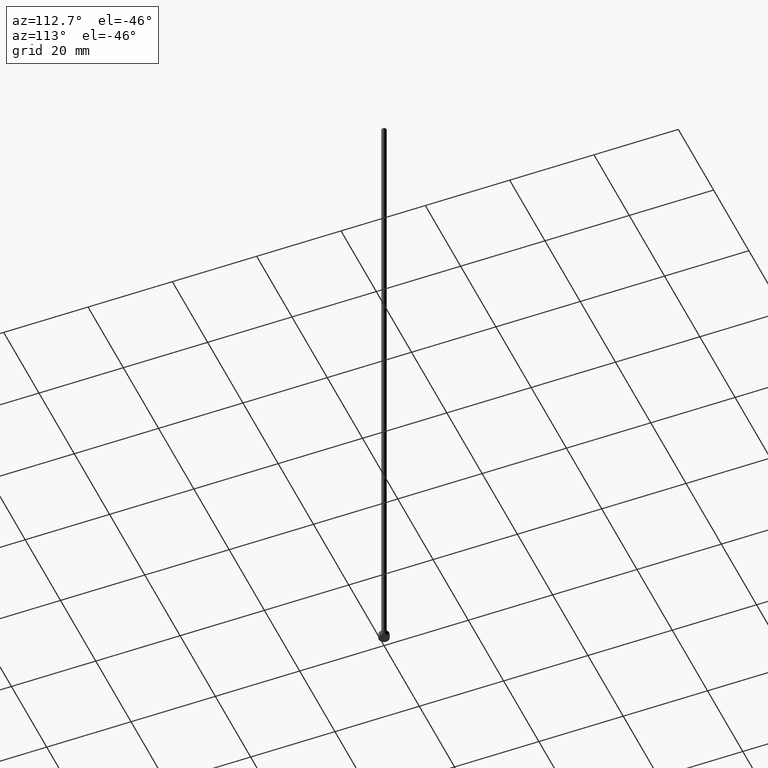
[diagram: clean part render]
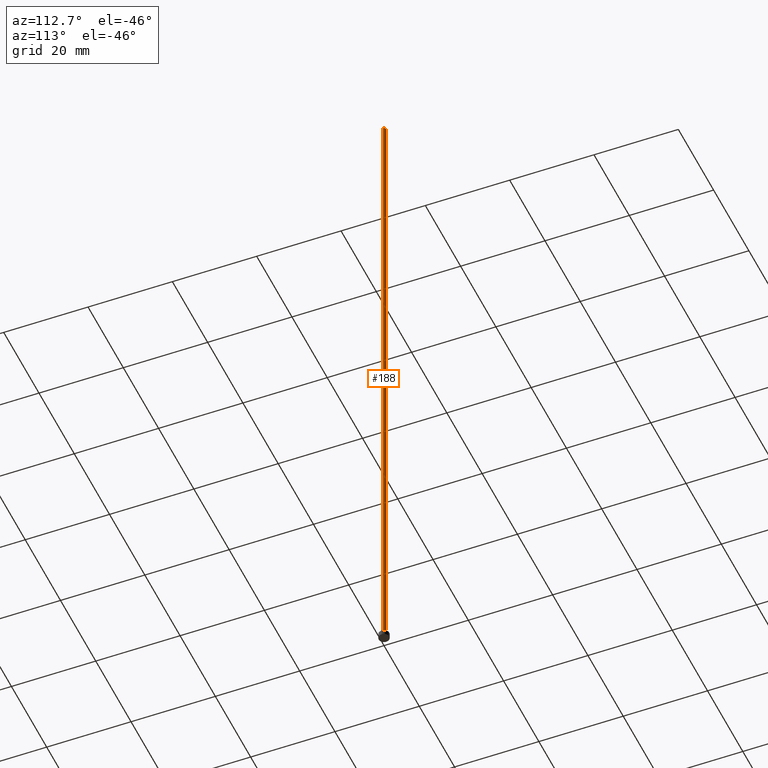
[diagram: same view with one face highlighted and labeled with its STEP entity id]
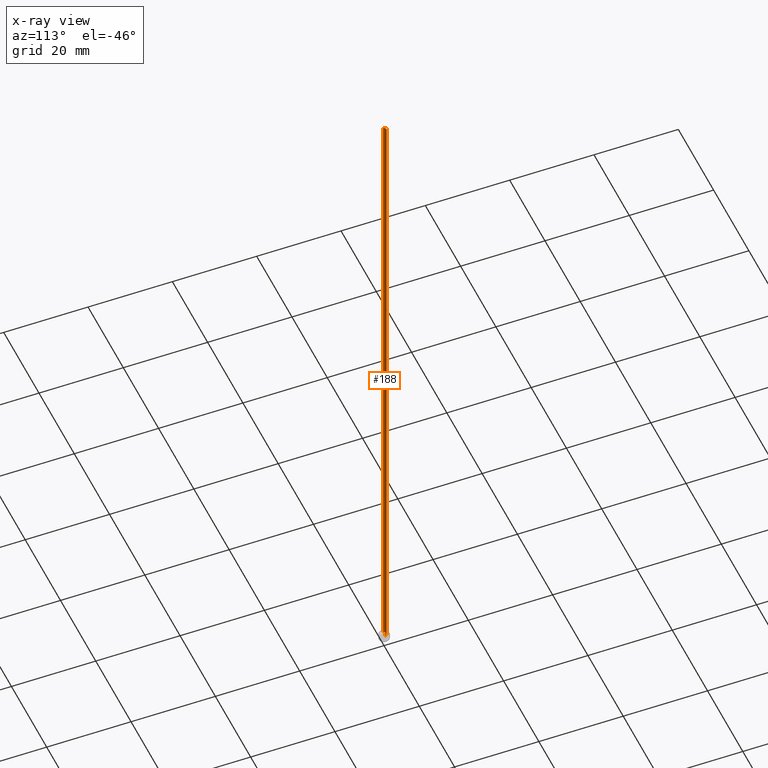
[diagram: x-ray of the same camera — body ghosted, the highlighted face saturated]
A machine part, auxiliary view. The second image highlights one B-rep face of the part: STEP entity #188.
The next image is the same camera in x-ray: the body ghosted, the highlighted face saturated — about 0% of this face is hidden behind the body in this view.
In plain terms, the highlighted cylindrical surface (edge-blend (fillet) strip) has radius 0.6 mm, axis along (-0, -0, -1).
Its self-contained STEP definition (entity closure, byte-faithful):
#4 = VECTOR ( 'NONE', #180, 1000.000000000000000 ) ;
#6 = DIRECTION ( 'NONE',  ( -0.000000000000000000, -0.000000000000000000, -1.000000000000000000 ) ) ;
#19 = DIRECTION ( 'NONE',  ( -0.000000000000000000, -0.000000000000000000, -1.000000000000000000 ) ) ;
#27 = ORIENTED_EDGE ( 'NONE', *, *, #128, .T. ) ;
#32 = CARTESIAN_POINT ( 'NONE',  ( 0.5999999999999999778, 7.347880794884117764E-17, 160.0000000000000284 ) ) ;
#34 = LINE ( 'NONE', #32, #141 ) ;
#41 = FACE_OUTER_BOUND ( 'NONE', #236, .T. ) ;
#42 = EDGE_CURVE ( 'NONE', #196, #43, #34, .T. ) ;
#43 = VERTEX_POINT ( 'NONE', #53 ) ;
#53 = CARTESIAN_POINT ( 'NONE',  ( 0.5999999999999999778, 7.347880794884117764E-17, 1.199999999999999956 ) ) ;
#73 = CARTESIAN_POINT ( 'NONE',  ( 0.000000000000000000, 0.000000000000000000, 1.199999999999999956 ) ) ;
#76 = EDGE_CURVE ( 'NONE', #149, #81, #181, .T. ) ;
#81 = VERTEX_POINT ( 'NONE', #242 ) ;
#93 = DIRECTION ( 'NONE',  ( 1.000000000000000000, 0.000000000000000000, 0.000000000000000000 ) ) ;
#98 = ORIENTED_EDGE ( 'NONE', *, *, #182, .F. ) ;
#112 = DIRECTION ( 'NONE',  ( -1.000000000000000000, 0.000000000000000000, 0.000000000000000000 ) ) ;
#123 = DIRECTION ( 'NONE',  ( 1.000000000000000000, 0.000000000000000000, 0.000000000000000000 ) ) ;
#128 = EDGE_CURVE ( 'NONE', #43, #81, #144, .T. ) ;
#139 = CARTESIAN_POINT ( 'NONE',  ( -0.5999999999999999778, 0.000000000000000000, 160.0000000000000284 ) ) ;
#141 = VECTOR ( 'NONE', #6, 1000.000000000000000 ) ;
#144 = CIRCLE ( 'NONE', #243, 0.5999999999999999778 ) ;
#145 = DIRECTION ( 'NONE',  ( 0.000000000000000000, 0.000000000000000000, 1.000000000000000000 ) ) ;
#149 = VERTEX_POINT ( 'NONE', #219 ) ;
#152 = ORIENTED_EDGE ( 'NONE', *, *, #76, .F. ) ;
#177 = AXIS2_PLACEMENT_3D ( 'NONE', #231, #19, #112 ) ;
#180 = DIRECTION ( 'NONE',  ( -0.000000000000000000, -0.000000000000000000, -1.000000000000000000 ) ) ;
#181 = LINE ( 'NONE', #139, #4 ) ;
#182 = EDGE_CURVE ( 'NONE', #196, #149, #239, .T. ) ;
#184 = AXIS2_PLACEMENT_3D ( 'NONE', #251, #145, #93 ) ;
#188 = ADVANCED_FACE ( 'NONE', ( #41 ), #190, .T. ) ;
#190 = CYLINDRICAL_SURFACE ( 'NONE', #177, 0.5999999999999999778 ) ;
#196 = VERTEX_POINT ( 'NONE', #252 ) ;
#203 = DIRECTION ( 'NONE',  ( 0.000000000000000000, 0.000000000000000000, 1.000000000000000000 ) ) ;
#219 = CARTESIAN_POINT ( 'NONE',  ( -0.5999999999999999778, 0.000000000000000000, 160.0000000000000284 ) ) ;
#231 = CARTESIAN_POINT ( 'NONE',  ( 0.000000000000000000, 0.000000000000000000, 160.0000000000000284 ) ) ;
#235 = ORIENTED_EDGE ( 'NONE', *, *, #42, .T. ) ;
#236 = EDGE_LOOP ( 'NONE', ( #98, #235, #27, #152 ) ) ;
#239 = CIRCLE ( 'NONE', #184, 0.5999999999999999778 ) ;
#242 = CARTESIAN_POINT ( 'NONE',  ( -0.5999999999999999778, 0.000000000000000000, 1.199999999999999956 ) ) ;
#243 = AXIS2_PLACEMENT_3D ( 'NONE', #73, #203, #123 ) ;
#251 = CARTESIAN_POINT ( 'NONE',  ( 0.000000000000000000, 0.000000000000000000, 160.0000000000000284 ) ) ;
#252 = CARTESIAN_POINT ( 'NONE',  ( 0.5999999999999999778, 7.347880794884117764E-17, 160.0000000000000284 ) ) ;